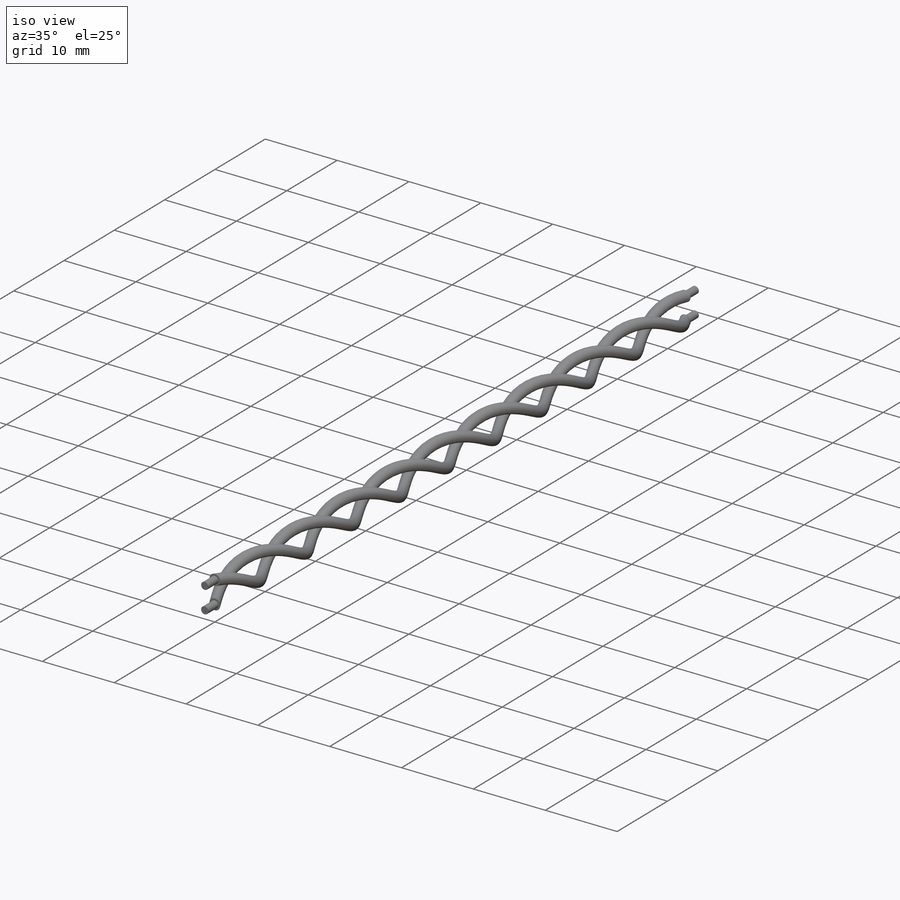
[diagram: iso view]
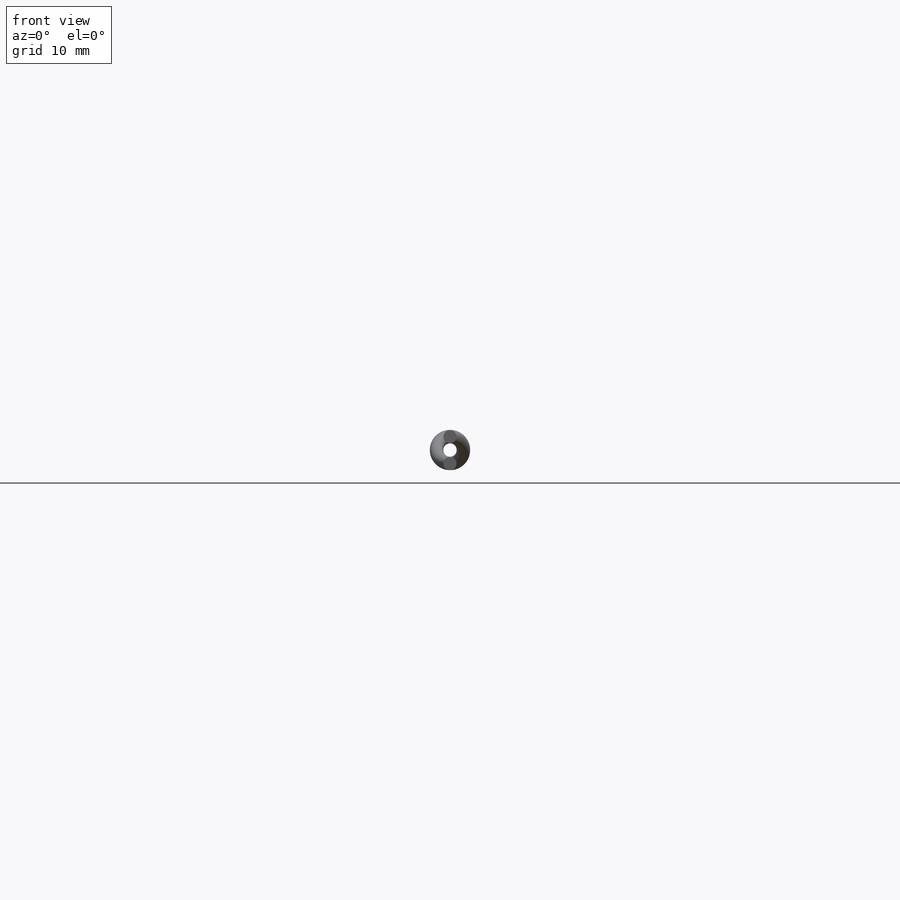
[diagram: front view]
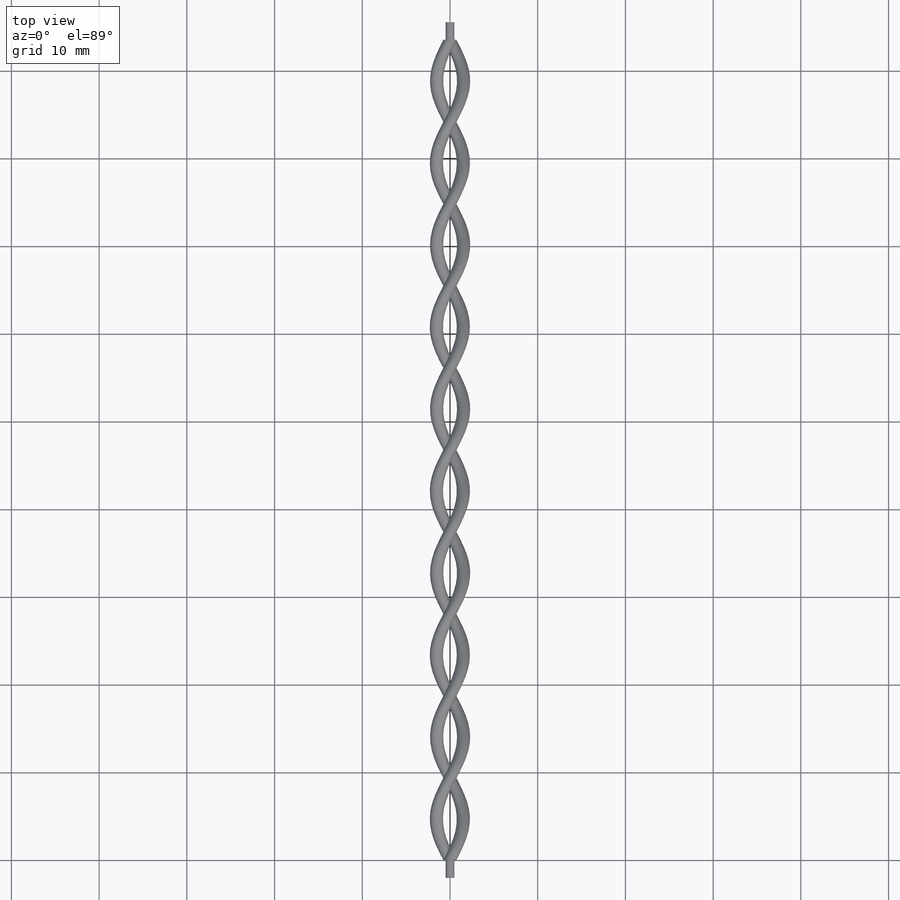
[diagram: top view]
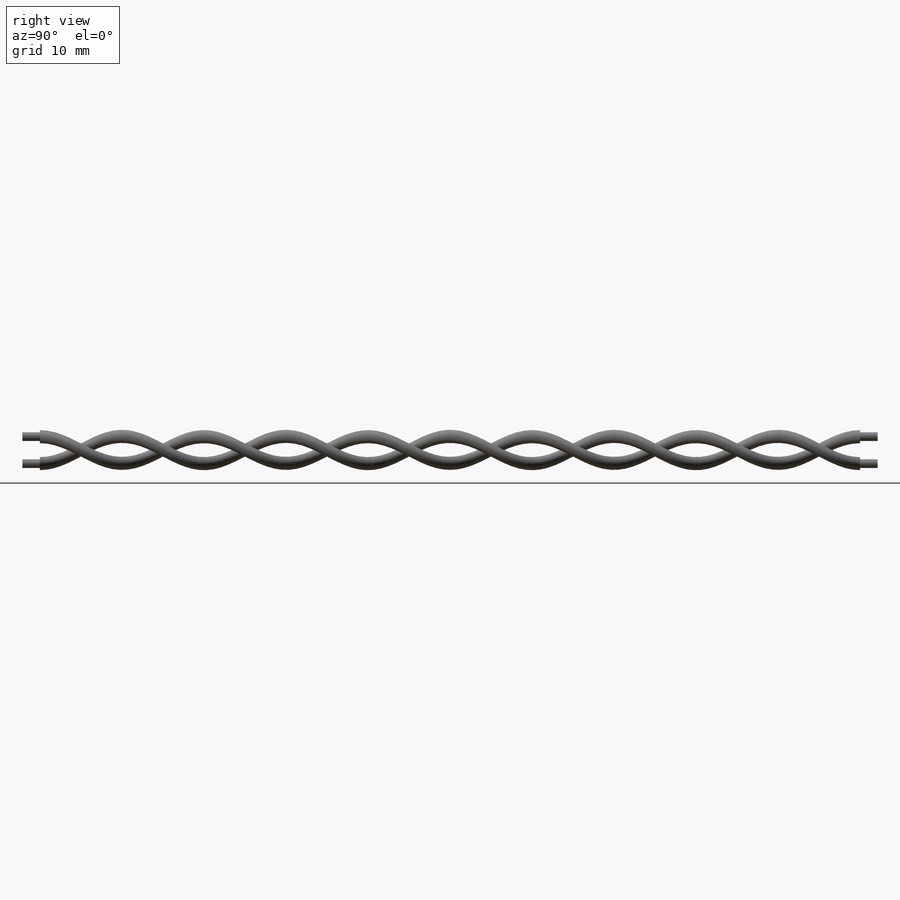
[diagram: right view]
SOLIDWORKS PART (.sldprt)
format: sldprt  version: not decoded by parser v0  size: 421,888 bytes
history: native  units: mm
features: sketch x5, helix x2, extrude x2, material x1, sweep x1 (+13 scaffold rows collapsed)
feature tree (24):
  scaffold x13  (default folders/planes/origin — collapsed)
  material  "Material <not specified>"
  sketch  "Sketch1"  dims[D1=3.0mm]
  helix  "Helix/Spiral1"  Pitch=93.5mm
  sketch  "Sketch2"  dims[D1=3.0mm]
  helix  "Helix/Spiral2"  Pitch=93.5mm
  sketch  "Sketch9"  dims[D1=1.5mm D2=1.5mm]
  sweep  "Sweep2"
  sketch  "Sketch10"  dims[D1=1.0mm D2=1.0mm]
  extrude  "Boss-Extrude1"  Depth=2mm
  sketch  "Sketch11"  dims[D1=1.0mm D2=1.0mm]
  extrude  "Boss-Extrude2"  Depth=3.556076mm
decode coverage: 9 of 10 modeling features carry decoded parameters
note: suppression state not decoded; provenance and decode notes live in map.json
